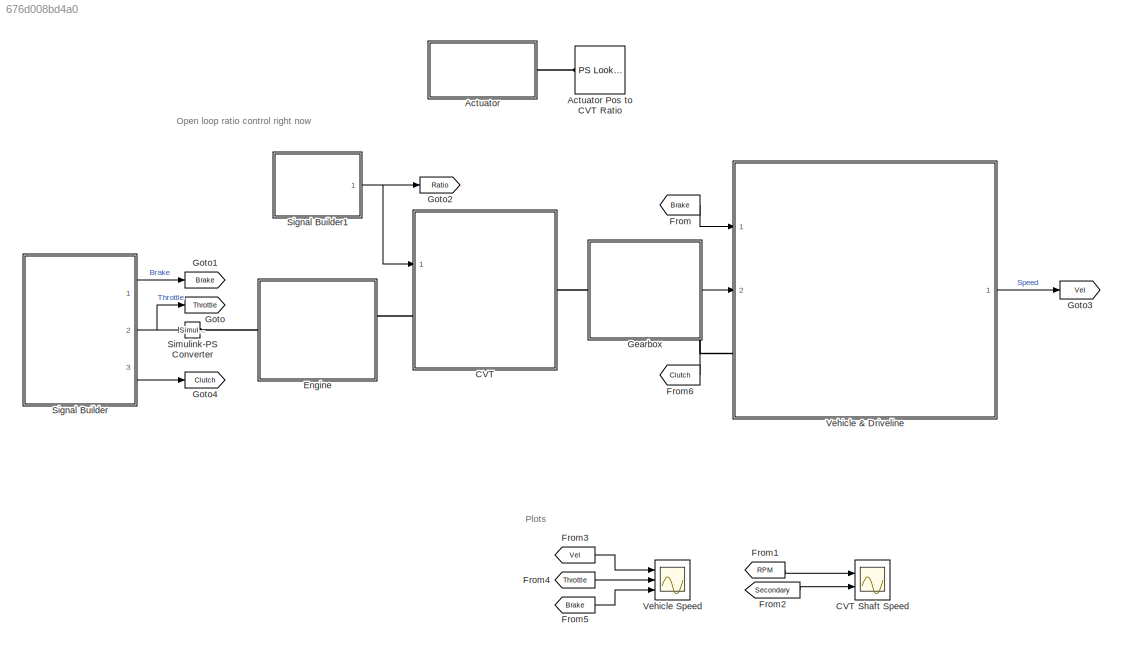
MODEL slx_676d008bd4a0
KIND model
CONFIG AbsTol = auto
CONFIG EnableMultiTasking = off
CONFIG FixedStep = auto
CONFIG MaxStep = auto
CONFIG MinStep = auto
CONFIG PreLoadFcn = load('eg_curve.mat');
CONFIG RelTol = 1e-3
CONFIG SampleTimeConstraint = Unconstrained
CONFIG Solver = ode23t
CONFIG SolverName = ode23t
CONFIG StartTime = 0.0
CONFIG StopTime = 10.0
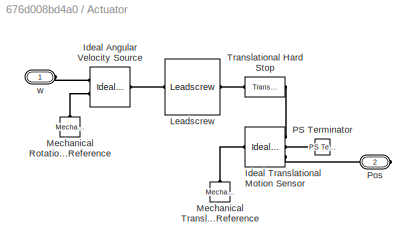
BLOCK [SubSystem] Actuator
  Commented = on
  Ports = [0, 0, 0, 0, 0, 1, 1]
  RequestExecContextInheritance = off
BLOCK [Reference] Actuator Pos to CVT Ratio  REF=fl_lib/Physical Signals/Lookup Tables/PS Lookup Table (1D)
  Commented = on
  Ports = [0, 0, 0, 0, 0, 1, 1]
  SourceBlock = fl_lib/Physical Signals/Lookup Tables/PS Lookup Table (1D)
  SourceProductBaseCode = SS
  SourceType = PS Lookup Table (1D)
BLOCK [Reference] Actuator/Ideal Angular Velocity Source  REF=fl_lib/Mechanical/Mechanical Sources/Ideal Angular
Velocity Source
  Ports = [0, 0, 0, 0, 0, 1, 2]
  SourceBlock = fl_lib/Mechanical/Mechanical Sources/Ideal Angular\nVelocity Source
  SourceProductBaseCode = SS
  SourceType = Ideal Angular\nVelocity Source
BLOCK [Reference] Actuator/Ideal Translational Motion Sensor  REF=fl_lib/Mechanical/Mechanical Sensors/Ideal Translational
Motion Sensor
  Ports = [0, 0, 0, 0, 0, 1, 3]
  SourceBlock = fl_lib/Mechanical/Mechanical Sensors/Ideal Translational\nMotion Sensor
  SourceProductBaseCode = SS
  SourceType = Ideal Translational\nMotion Sensor
BLOCK [Reference] Actuator/Leadscrew  REF=sdl_lib/Gears/Rotational-
Translational/Leadscrew
  Ports = [0, 0, 0, 0, 0, 1, 1]
  SourceBlock = sdl_lib/Gears/Rotational-\nTranslational/Leadscrew
  SourceProductBaseCode = LD
  SourceType = Leadscrew
BLOCK [Reference] Actuator/Mechanical Rotational Reference  REF=fl_lib/Mechanical/Rotational Elements/Mechanical
Rotational Reference
  NameLocation = right
  Ports = [0, 0, 0, 0, 0, 1]
  SourceBlock = fl_lib/Mechanical/Rotational Elements/Mechanical\nRotational Reference
  SourceProductBaseCode = SS
  SourceType = Mechanical\nRotational Reference
BLOCK [Reference] Actuator/Mechanical Translational Reference  REF=fl_lib/Mechanical/Translational
Elements/Mechanical
Translational
Reference
  NameLocation = right
  Ports = [0, 0, 0, 0, 0, 1]
  SourceBlock = fl_lib/Mechanical/Translational\nElements/Mechanical\nTranslational\nReference
  SourceProductBaseCode = SS
  SourceType = Mechanical\nTranslational\nReference
BLOCK [Reference] Actuator/PS Terminator  REF=fl_lib/Physical Signals/Sinks/PS Terminator
  Ports = [0, 0, 0, 0, 0, 1]
  SourceBlock = fl_lib/Physical Signals/Sinks/PS Terminator
  SourceProductBaseCode = SS
  SourceType = PS Terminator
BLOCK [PMIOPort] Actuator/Pos
  Port = 2
  Side = Right
BLOCK [Reference] Actuator/Translational Hard Stop  REF=fl_lib/Mechanical/Translational
Elements/Translational Hard
Stop
  Ports = [0, 0, 0, 0, 0, 1, 1]
  SourceBlock = fl_lib/Mechanical/Translational\nElements/Translational Hard\nStop
  SourceProductBaseCode = SS
  SourceType = Translational Hard\nStop
BLOCK [PMIOPort] Actuator/w
  Side = Left
BLOCK [SubSystem] CVT
  Ports = [1, 0, 0, 0, 0, 1, 1]
  ReferencedSubsystem = CVT
  RequestExecContextInheritance = off
BLOCK [Scope] CVT Shaft Speed
  Floating = off
  NumInputPorts = 2
  Ports = [2]
  ScopeSpecificationString = Simulink.scopes.TimeScopeBlockCfg('CurrentConfiguration', extmgr.ConfigurationSet(extmgr.Configuration('Core','General UI',true),extmgr.Configuration('Core','Source UI',true),extmgr.Configuration('Sources','WiredSimulink',true),extmgr.Configuration('Visuals','Time Domain',true,'SerializedDisplays',{struct('MinYLimReal','-529.44082','MaxYLimReal','2698.09601','YLabelReal','','MinYLimMag',' 0.00000'...<+1415ch>
BLOCK [SubSystem] Engine
  Ports = [0, 0, 0, 0, 0, 1, 1]
  ReferencedSubsystem = Engine
  RequestExecContextInheritance = off
BLOCK [From] From
  GotoTag = Brake
  TagVisibility = global
BLOCK [From] From1
  GotoTag = RPM
  TagVisibility = global
BLOCK [From] From2
  GotoTag = Secondary
  TagVisibility = global
BLOCK [From] From3
  GotoTag = Vel
  TagVisibility = global
BLOCK [From] From4
  GotoTag = Throttle
  TagVisibility = global
BLOCK [From] From5
  GotoTag = Brake
  TagVisibility = global
BLOCK [From] From6
  GotoTag = Clutch
  TagVisibility = global
BLOCK [SubSystem] Gearbox
  Ports = [0, 0, 0, 0, 0, 1, 1]
  ReferencedSubsystem = Gearbox
  RequestExecContextInheritance = off
BLOCK [Goto] Goto
  GotoTag = Throttle
  TagVisibility = global
BLOCK [Goto] Goto1
  GotoTag = Brake
  TagVisibility = global
BLOCK [Goto] Goto2
  Commented = on
  GotoTag = Ratio
  TagVisibility = global
BLOCK [Goto] Goto3
  GotoTag = Vel
  TagVisibility = global
BLOCK [Goto] Goto4
  GotoTag = Clutch
  TagVisibility = global
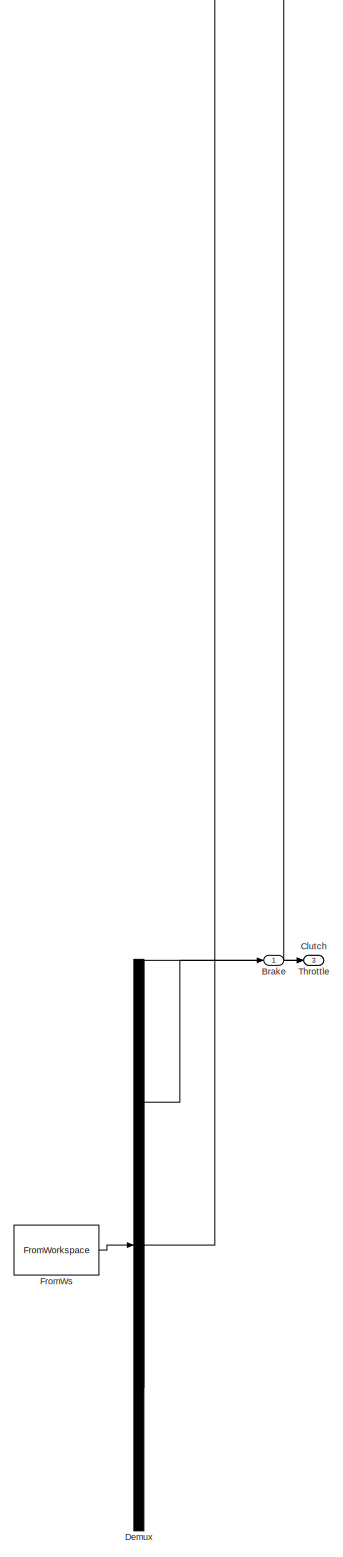
[diagram: Signal Builder - part 1/1, full width, bottom band]
BLOCK [SubSystem] Signal Builder
  ClipboardFcn = sigbuilder_block('clipboard');
  CloseFcn = sigbuilder_block('close');
  ContinueFcn = sigbuilder_block('continue');
  CopyFcn = sigbuilder_block('copy');
  DeleteFcn = sigbuilder_block('delete');
  LoadFcn = sigbuilder_block('load');
  MaskHideContents = on
  ModelCloseFcn = sigbuilder_block('modelClose');
  NameChangeFcn = sigbuilder_block('namechange');
  OpenFcn = sigbuilder_block('open',[219.6 117.6 550.2 399.6 ]);
  PauseFcn = sigbuilder_block('pause');
  Ports = [0, 3]
  PreSaveFcn = sigbuilder_block('preSave');
  RequestExecContextInheritance = off
  StartFcn = sigbuilder_block('start');
  StopFcn = sigbuilder_block('stop');
  Tag = STV Subsys
BLOCK [Outport] Signal Builder/Brake
  Tag = STV Outport
BLOCK [Outport] Signal Builder/Clutch
  Port = 3
  Tag = STV Outport
BLOCK [Demux] Signal Builder/Demux
  DisplayOption = none
  Outputs = 3
  Ports = [1, 3]
  Tag = STV Demux
BLOCK [FromWorkspace] Signal Builder/FromWs
  Tag = STV FromWs
  VariableName = tuvar
BLOCK [Outport] Signal Builder/Throttle
  Port = 2
  Tag = STV Outport
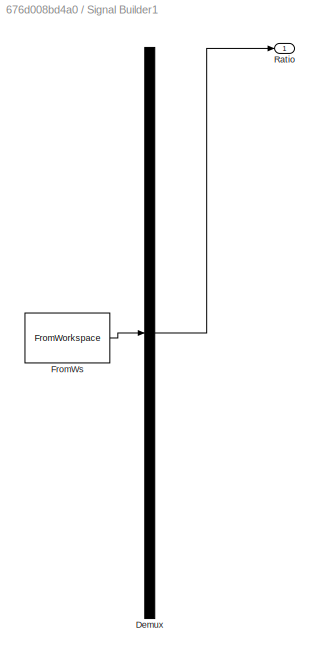
BLOCK [SubSystem] Signal Builder1
  ClipboardFcn = sigbuilder_block('clipboard');
  CloseFcn = sigbuilder_block('close');
  ContinueFcn = sigbuilder_block('continue');
  CopyFcn = sigbuilder_block('copy');
  DeleteFcn = sigbuilder_block('delete');
  LoadFcn = sigbuilder_block('load');
  MaskHideContents = on
  ModelCloseFcn = sigbuilder_block('modelClose');
  NameChangeFcn = sigbuilder_block('namechange');
  OpenFcn = sigbuilder_block('open',[223.5 187.8 550.5 399.6 ]);
  PauseFcn = sigbuilder_block('pause');
  Ports = [0, 1]
  PreSaveFcn = sigbuilder_block('preSave');
  RequestExecContextInheritance = off
  StartFcn = sigbuilder_block('start');
  StopFcn = sigbuilder_block('stop');
  Tag = STV Subsys
BLOCK [Demux] Signal Builder1/Demux
  DisplayOption = none
  Outputs = 1
  Ports = [1, 1]
  Tag = STV Demux
BLOCK [FromWorkspace] Signal Builder1/FromWs
  Tag = STV FromWs
  VariableName = tuvar
BLOCK [Outport] Signal Builder1/Ratio
  Tag = STV Outport
BLOCK [Reference] Simulink-PS Converter  REF=nesl_utility/Simulink-PS
Converter
  Ports = [1, 0, 0, 0, 0, 0, 1]
  SourceBlock = nesl_utility/Simulink-PS\nConverter
  SourceProductBaseCode = SS
  SourceType = Simulink-PS\nConverter
BLOCK [SubSystem] Vehicle & Driveline
  PortSchema = {"entries":[{"content":{"sides":[{"content":{"connectorIds":["In1","LConn1","In2"]},"type":"ConnectorPlacement.EquallySpacedRectSide","uuid":"78314513-4943-4d61-96b6-d0b10dc591b0"},{"content":{"connectorIds":["Out1"],"side":"RIGHT"},"type":"ConnectorPlacement.EquallySpacedRectSide","uuid":"8064f64a-5a85-4ab6-b49b-013a9f6038eb"},{"content":{"connectorIds":[],"side":"TOP"},"type":"ConnectorPlacement...<+257ch>
  Ports = [2, 1, 0, 0, 0, 1]
  ReferencedSubsystem = Vehicle_Driveline
  RequestExecContextInheritance = off
BLOCK [Scope] Vehicle Speed
  Floating = off
  NumInputPorts = 3
  Ports = [3]
  ScopeSpecificationString = Simulink.scopes.TimeScopeBlockCfg('CurrentConfiguration', extmgr.ConfigurationSet(extmgr.Configuration('Core','General UI',true),extmgr.Configuration('Core','Source UI',true),extmgr.Configuration('Sources','WiredSimulink',true,'DataLoggingVariableName','ScopeData1'),extmgr.Configuration('Visuals','Time Domain',true,'SerializedDisplays',{struct('MinYLimReal','-0.125','MaxYLimReal','1.125','YLabelRe...<+1407ch>
ANNOTATION (root): Plots
ANNOTATION (root): Open loop ratio control right now
LINE From1:1 -> CVT Shaft Speed:1
LINE From2:1 -> CVT Shaft Speed:2
LINE From3:1 -> Vehicle Speed:1
LINE From4:1 -> Vehicle Speed:2
LINE From5:1 -> Vehicle Speed:3
LINE From6:1 -> Vehicle & Driveline:2
LINE From:1 -> Vehicle & Driveline:1
NET Signal Builder1:1 -> CVT:1, Goto2:1
LINE Signal Builder:1 -> Goto1:1
NET Signal Builder:2 -> Goto:1, Simulink-PS Converter:1
LINE Signal Builder:3 -> Goto4:1
LINE Vehicle & Driveline:1 -> Goto3:1
PLINE Actuator Pos to CVT Ratio:LConn1 -- Actuator:RConn1
PLINE Actuator/Ideal Angular Velocity Source:LConn1 -- Actuator/Leadscrew:LConn1
PLINE Actuator/Ideal Angular Velocity Source:RConn1 -- Actuator/w:RConn1
PLINE Actuator/Ideal Angular Velocity Source:RConn2 -- Actuator/Mechanical Rotational Reference:LConn1
PLINE Actuator/Ideal Translational Motion Sensor:LConn1 -- Actuator/Mechanical Translational Reference:LConn1
PLINE Actuator/Ideal Translational Motion Sensor:RConn1 -- Actuator/Translational Hard Stop:RConn1
PLINE Actuator/Ideal Translational Motion Sensor:RConn2 -- Actuator/PS Terminator:LConn1
PLINE Actuator/Ideal Translational Motion Sensor:RConn3 -- Actuator/Pos:RConn1
PLINE Actuator/Leadscrew:RConn1 -- Actuator/Translational Hard Stop:LConn1
PLINE CVT:LConn1 -- Engine:RConn1
PLINE CVT:RConn1 -- Gearbox:LConn1
PLINE Engine:LConn1 -- Simulink-PS Converter:RConn1
PLINE Gearbox:RConn1 -- Vehicle & Driveline:LConn1
note: NET lines group one-source signal fan-out (src -> all destinations, sorted); 1:1 wires keep LINE
